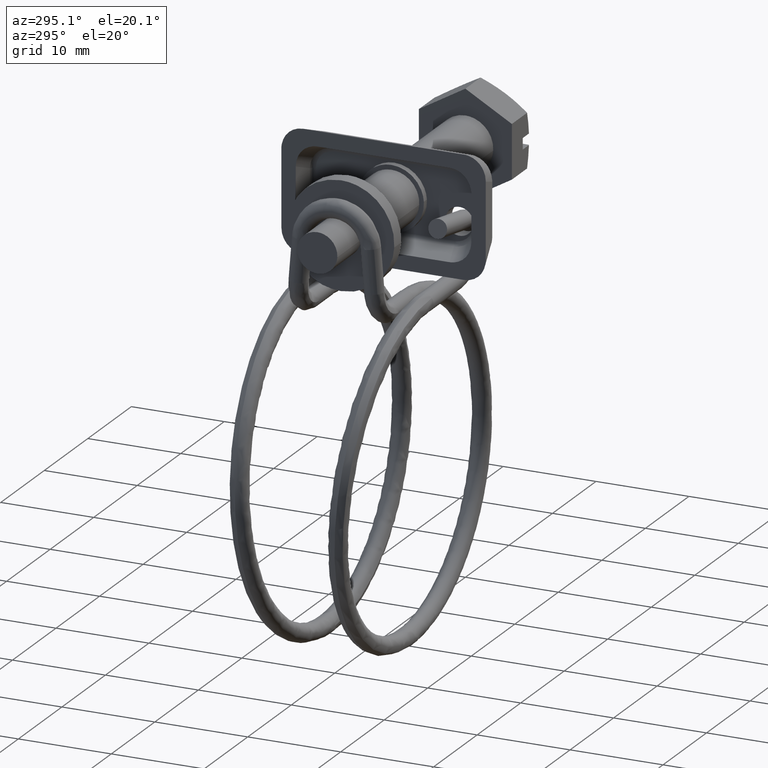
[diagram: clean part render]
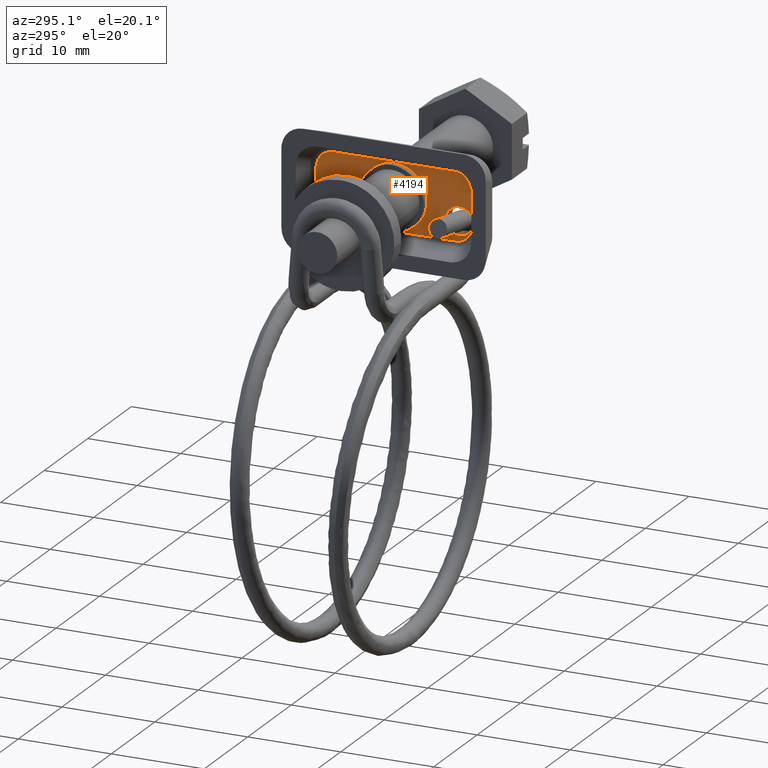
[diagram: same view with one face highlighted and labeled with its STEP entity id]
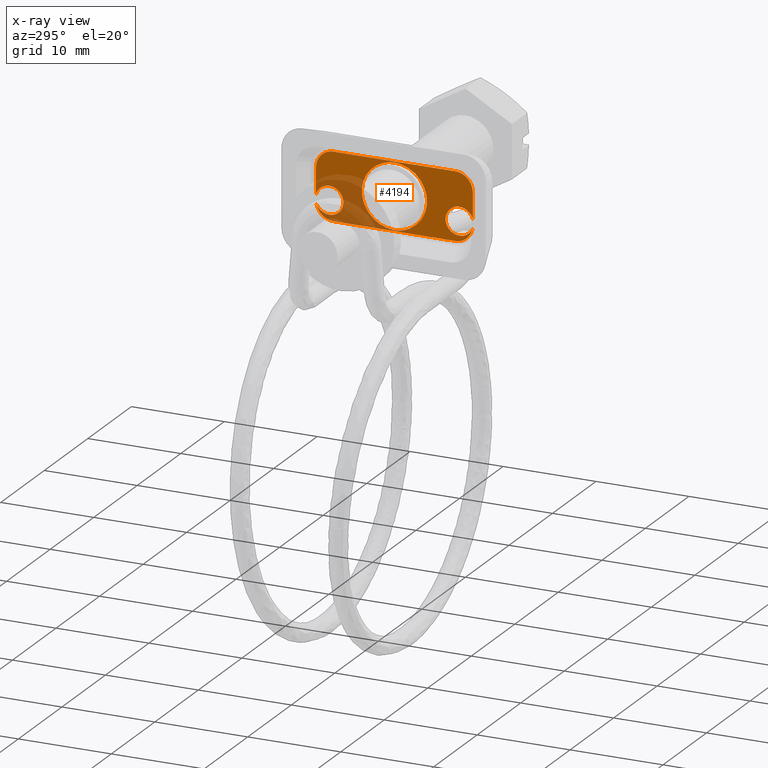
[diagram: x-ray of the same camera — body ghosted, the highlighted face saturated]
A machine part, auxiliary view. The second image highlights one B-rep face of the part: STEP entity #4194.
The next image is the same camera in x-ray: the body ghosted, the highlighted face saturated — about 28% of this face is hidden behind the body in this view.
In plain terms, the highlighted face is a freeform B-spline surface patch.
Its self-contained STEP definition (entity closure, byte-faithful):
#1883=CARTESIAN_POINT('',(-36.200000000000003,-5.728322967220962,-0.704489142564706));
#1884=VERTEX_POINT('',#1883);
#1885=CARTESIAN_POINT('',(-36.200000000000003,-8.438446995591788,-1.074711579191980));
#1886=VERTEX_POINT('',#1885);
#1887=CARTESIAN_POINT('',(-36.199999999999996,-5.728322967220962,-0.704489142564706));
#1888=CARTESIAN_POINT('',(-36.200000000000003,-6.104554299034929,-0.103058327120304));
#1889=CARTESIAN_POINT('',(-36.200000000000003,-6.808142015089159,-0.012320426427032));
#1890=CARTESIAN_POINT('',(-36.200000000000010,-8.075999828347010,0.151188335490741));
#1891=CARTESIAN_POINT('',(-36.200000000000003,-8.438446995591784,-1.074711579191981));
#1899=(BOUNDED_CURVE()B_SPLINE_CURVE(2,(#1887,#1888,#1889,#1890,#1891),.UNSPECIFIED.,.F.,.U.)B_SPLINE_CURVE_WITH_KNOTS((3,2,3),(0.594758362980781,0.750000000000000,1.0),.UNSPECIFIED.)CURVE()GEOMETRIC_REPRESENTATION_ITEM()RATIONAL_B_SPLINE_CURVE((0.887540634052560,0.851649814314742,1.0,0.761097942965372,1.0))REPRESENTATION_ITEM(''));
#1900=EDGE_CURVE('',#1884,#1886,#1899,.T.);
#1956=CARTESIAN_POINT('',(-36.200000000000003,-5.502797802371344,-1.591572809368125));
#1957=VERTEX_POINT('',#1956);
#1963=CARTESIAN_POINT('',(-36.200000000000003,-8.409378136258292,-2.013471780176190));
#1964=VERTEX_POINT('',#1963);
#1965=CARTESIAN_POINT('',(-36.200000000000003,-8.409378136258290,-2.013471780176189));
#1966=CARTESIAN_POINT('',(-36.200000000000010,-7.971777714804319,-3.214598093686211));
#1967=CARTESIAN_POINT('',(-36.200000000000003,-6.716465370576391,-2.972958965456003));
#1968=CARTESIAN_POINT('',(-36.200000000000010,-5.573834358310540,-2.753010230814557));
#1969=CARTESIAN_POINT('',(-36.200000000000010,-5.502797802371344,-1.591572809368125));
#1977=(BOUNDED_CURVE()B_SPLINE_CURVE(2,(#1965,#1966,#1967,#1968,#1969),.UNSPECIFIED.,.F.,.U.)B_SPLINE_CURVE_WITH_KNOTS((3,2,3),(0.0,0.250000000000000,0.482545984484111),.UNSPECIFIED.)CURVE()GEOMETRIC_REPRESENTATION_ITEM()RATIONAL_B_SPLINE_CURVE((1.0,0.761097942965372,1.0,0.777777143806413,0.968970550560096))REPRESENTATION_ITEM(''));
#1978=EDGE_CURVE('',#1964,#1957,#1977,.T.);
#2025=CARTESIAN_POINT('',(-36.200000000000003,-5.502797802371344,-1.591572809368125));
#2026=CARTESIAN_POINT('',(-36.200000000000003,-5.498580561943726,-1.522621537968316));
#2027=CARTESIAN_POINT('',(-36.200000000000003,-5.500718614089884,-1.453574512785301));
#2028=CARTESIAN_POINT('',(-36.200000000000003,-5.513269020131084,-1.048267185019144));
#2029=CARTESIAN_POINT('',(-36.199999999999996,-5.728322967220962,-0.704489142564706));
#2037=(BOUNDED_CURVE()B_SPLINE_CURVE(2,(#2025,#2026,#2027,#2028,#2029),.UNSPECIFIED.,.F.,.U.)B_SPLINE_CURVE_WITH_KNOTS((3,2,3),(0.482545984484111,0.500000000000000,0.594758362980781),.UNSPECIFIED.)CURVE()GEOMETRIC_REPRESENTATION_ITEM()RATIONAL_B_SPLINE_CURVE((0.968970550560096,0.983320799158959,1.0,0.909448128650630,0.887540634052560))REPRESENTATION_ITEM(''));
#2038=EDGE_CURVE('',#1957,#1884,#2037,.T.);
#2086=CARTESIAN_POINT('',(-36.199999999999982,5.910111553864709,-2.530603306309243));
#2087=VERTEX_POINT('',#2086);
#2088=CARTESIAN_POINT('',(-36.200000000000003,8.409378136258361,-2.013471780175256));
#2089=VERTEX_POINT('',#2088);
#2090=CARTESIAN_POINT('',(-36.199999999999982,5.910111553864710,-2.530603306309242));
#2091=CARTESIAN_POINT('',(-36.200000000000003,6.242050934374313,-2.881637398110195));
#2092=CARTESIAN_POINT('',(-36.200000000000003,6.716465370576574,-2.972958965456092));
#2093=CARTESIAN_POINT('',(-36.200000000000010,7.971777714805023,-3.214598093685992));
#2094=CARTESIAN_POINT('',(-36.200000000000003,8.409378136258351,-2.013471780175252));
#2102=(BOUNDED_CURVE()B_SPLINE_CURVE(2,(#2090,#2091,#2092,#2093,#2094),.UNSPECIFIED.,.F.,.U.)B_SPLINE_CURVE_WITH_KNOTS((3,2,3),(0.639026301856619,0.750000000000000,1.0),.UNSPECIFIED.)CURVE()GEOMETRIC_REPRESENTATION_ITEM()RATIONAL_B_SPLINE_CURVE((0.882053000549589,0.893952620947175,1.0,0.761097942965258,1.0))REPRESENTATION_ITEM(''));
#2103=EDGE_CURVE('',#2087,#2089,#2102,.T.);
#2159=CARTESIAN_POINT('',(-36.200000000000003,5.502797802376444,-1.408427190543685));
#2160=VERTEX_POINT('',#2159);
#2166=CARTESIAN_POINT('',(-36.200000000000003,8.438446995591820,-1.074711579193044));
#2167=VERTEX_POINT('',#2166);
#2168=CARTESIAN_POINT('',(-36.200000000000003,8.438446995591820,-1.074711579193044));
#2169=CARTESIAN_POINT('',(-36.200000000000010,8.075999828347822,0.151188335490383));
#2170=CARTESIAN_POINT('',(-36.200000000000003,6.808142015089454,-0.012320426426957));
#2171=CARTESIAN_POINT('',(-36.200000000000010,5.578488070982858,-0.170902242057313));
#2172=CARTESIAN_POINT('',(-36.200000000000003,5.502797802376444,-1.408427190543685));
#2180=(BOUNDED_CURVE()B_SPLINE_CURVE(2,(#2168,#2169,#2170,#2171,#2172),.UNSPECIFIED.,.F.,.U.)B_SPLINE_CURVE_WITH_KNOTS((3,2,3),(0.0,0.250000000000000,0.494224959474244),.UNSPECIFIED.)CURVE()GEOMETRIC_REPRESENTATION_ITEM()RATIONAL_B_SPLINE_CURVE((1.0,0.761097942965258,1.0,0.766616619209506,0.989217612143176))REPRESENTATION_ITEM(''));
#2181=EDGE_CURVE('',#2167,#2160,#2180,.T.);
#2232=CARTESIAN_POINT('',(-36.200000000000003,5.502797802376444,-1.408427190543685));
#2233=CARTESIAN_POINT('',(-36.200000000000003,5.501418096125874,-1.430985188263862));
#2234=CARTESIAN_POINT('',(-36.200000000000003,5.500718614089606,-1.453574512785245));
#2235=CARTESIAN_POINT('',(-36.200000000000003,5.481406792259794,-2.077237434481388));
#2236=CARTESIAN_POINT('',(-36.199999999999982,5.910111553864710,-2.530603306309242));
#2244=(BOUNDED_CURVE()B_SPLINE_CURVE(2,(#2232,#2233,#2234,#2235,#2236),.UNSPECIFIED.,.F.,.U.)B_SPLINE_CURVE_WITH_KNOTS((3,2,3),(0.494224959474244,0.500000000000000,0.639026301856619),.UNSPECIFIED.)CURVE()GEOMETRIC_REPRESENTATION_ITEM()RATIONAL_B_SPLINE_CURVE((0.989217612143176,0.994481323755752,1.0,0.867145322018083,0.882053000549589))REPRESENTATION_ITEM(''));
#2245=EDGE_CURVE('',#2160,#2087,#2244,.T.);
#2323=CARTESIAN_POINT('',(-36.200000000000003,-3.493471794471653,0.213669888451806));
#2324=VERTEX_POINT('',#2323);
#2330=CARTESIAN_POINT('',(-36.200000000000003,0.0,3.500000000000000));
#2331=VERTEX_POINT('',#2330);
#2332=CARTESIAN_POINT('',(-36.200000000000003,0.0,3.500000000000000));
#2333=CARTESIAN_POINT('',(-36.199999999999996,-3.292471234019215,3.499999999999999));
#2334=CARTESIAN_POINT('',(-36.200000000000003,-3.493471794471652,0.213669888451806));
#2342=(BOUNDED_CURVE()B_SPLINE_CURVE(2,(#2332,#2333,#2334),.UNSPECIFIED.,.F.,.U.)B_SPLINE_CURVE_WITH_KNOTS((3,3),(0.500000000000000,0.739332962234085),.UNSPECIFIED.)CURVE()GEOMETRIC_REPRESENTATION_ITEM()RATIONAL_B_SPLINE_CURVE((1.0,0.719603993292402,0.976072041656305))REPRESENTATION_ITEM(''));
#2343=EDGE_CURVE('',#2331,#2324,#2342,.T.);
#2345=CARTESIAN_POINT('',(-36.200000000000003,3.475533342264662,-0.413119821367392));
#2346=VERTEX_POINT('',#2345);
#2347=CARTESIAN_POINT('',(-36.200000000000003,3.475533342264662,-0.413119821367392));
#2348=CARTESIAN_POINT('',(-36.200000000000010,3.500000000000001,-0.207284418851149));
#2349=CARTESIAN_POINT('',(-36.200000000000003,3.500000000000000,0.0));
#2350=CARTESIAN_POINT('',(-36.200000000000003,3.500000000000000,3.500000000000000));
#2351=CARTESIAN_POINT('',(-36.200000000000003,0.0,3.500000000000000));
#2359=(BOUNDED_CURVE()B_SPLINE_CURVE(2,(#2347,#2348,#2349,#2350,#2351),.UNSPECIFIED.,.F.,.U.)B_SPLINE_CURVE_WITH_KNOTS((3,2,3),(0.229562473508959,0.250000000000000,0.500000000000000),.UNSPECIFIED.)CURVE()GEOMETRIC_REPRESENTATION_ITEM()RATIONAL_B_SPLINE_CURVE((0.956026754174783,0.976055948325816,1.0,0.707106781186547,1.0))REPRESENTATION_ITEM(''));
#2360=EDGE_CURVE('',#2346,#2331,#2359,.T.);
#2404=CARTESIAN_POINT('',(-36.200000000000003,0.0,-3.500000000000000));
#2405=VERTEX_POINT('',#2404);
#2406=CARTESIAN_POINT('',(-36.200000000000003,0.0,-3.500000000000000));
#2407=CARTESIAN_POINT('',(-36.200000000000003,3.108610840705958,-3.500000000000000));
#2408=CARTESIAN_POINT('',(-36.200000000000010,3.475533342264662,-0.413119821367392));
#2416=(BOUNDED_CURVE()B_SPLINE_CURVE(2,(#2406,#2407,#2408),.UNSPECIFIED.,.F.,.U.)B_SPLINE_CURVE_WITH_KNOTS((3,3),(0.0,0.229562473508959),.UNSPECIFIED.)CURVE()GEOMETRIC_REPRESENTATION_ITEM()RATIONAL_B_SPLINE_CURVE((1.0,0.731050832860732,0.956026754174783))REPRESENTATION_ITEM(''));
#2417=EDGE_CURVE('',#2405,#2346,#2416,.T.);
#2419=CARTESIAN_POINT('',(-36.200000000000003,-3.493471794471653,0.213669888451806));
#2420=CARTESIAN_POINT('',(-36.200000000000003,-3.500000000000000,0.106934671625091));
#2421=CARTESIAN_POINT('',(-36.200000000000003,-3.500000000000000,0.0));
#2422=CARTESIAN_POINT('',(-36.200000000000003,-3.500000000000000,-3.500000000000000));
#2423=CARTESIAN_POINT('',(-36.200000000000003,0.0,-3.500000000000000));
#2431=(BOUNDED_CURVE()B_SPLINE_CURVE(2,(#2419,#2420,#2421,#2422,#2423),.UNSPECIFIED.,.F.,.U.)B_SPLINE_CURVE_WITH_KNOTS((3,2,3),(0.739332962234085,0.750000000000000,1.0),.UNSPECIFIED.)CURVE()GEOMETRIC_REPRESENTATION_ITEM()RATIONAL_B_SPLINE_CURVE((0.976072041656306,0.987502787894146,1.0,0.707106781186547,1.0))REPRESENTATION_ITEM(''));
#2432=EDGE_CURVE('',#2324,#2405,#2431,.T.);
#2491=CARTESIAN_POINT('',(-36.200000000000003,-6.552455856614260,-3.613999483098555));
#2492=VERTEX_POINT('',#2491);
#2536=CARTESIAN_POINT('',(-36.200000000000003,-6.552455856614260,-3.613999483098555));
#2537=CARTESIAN_POINT('',(-36.199999999999996,-8.142356781997027,-3.613999483098620));
#2538=CARTESIAN_POINT('',(-36.200000000000003,-8.409378136258329,-2.013471780176166));
#2546=(BOUNDED_CURVE()B_SPLINE_CURVE(2,(#2536,#2537,#2538),.UNSPECIFIED.,.F.,.U.)CURVE()GEOMETRIC_REPRESENTATION_ITEM()QUASI_UNIFORM_CURVE()RATIONAL_B_SPLINE_CURVE((1.0,0.790787445489052,1.0))REPRESENTATION_ITEM(''));
#2547=EDGE_CURVE('',#2492,#1964,#2546,.T.);
#2641=CARTESIAN_POINT('',(-36.200000000000003,6.552455856614290,-3.613999483098555));
#2642=VERTEX_POINT('',#2641);
#2664=CARTESIAN_POINT('',(-36.200000000000003,6.552455856614290,-3.613999483098555));
#2665=CARTESIAN_POINT('',(-36.200000000000003,-6.552455856614260,-3.613999483098555));
#2666=QUASI_UNIFORM_CURVE('',1,(#2664,#2665),.UNSPECIFIED.,.F.,.U.);
#2667=EDGE_CURVE('',#2642,#2492,#2666,.T.);
#2788=CARTESIAN_POINT('',(-36.200000000000003,8.409378136258361,-2.013471780175256));
#2789=CARTESIAN_POINT('',(-36.199999999999996,8.142356781997565,-3.613999483098475));
#2790=CARTESIAN_POINT('',(-36.200000000000003,6.552455856614280,-3.613999483098562));
#2798=(BOUNDED_CURVE()B_SPLINE_CURVE(2,(#2788,#2789,#2790),.UNSPECIFIED.,.F.,.U.)CURVE()GEOMETRIC_REPRESENTATION_ITEM()QUASI_UNIFORM_CURVE()RATIONAL_B_SPLINE_CURVE((1.0,0.790787445488940,1.0))REPRESENTATION_ITEM(''));
#2799=EDGE_CURVE('',#2089,#2642,#2798,.T.);
#2820=CARTESIAN_POINT('',(-36.200000000000003,-8.438446995591788,1.659899352054025));
#2821=VERTEX_POINT('',#2820);
#2835=CARTESIAN_POINT('',(-36.200000000000003,-8.438446995591788,-1.074711579191980));
#2836=CARTESIAN_POINT('',(-36.200000000000003,-8.438446995591788,1.659899352054025));
#2837=QUASI_UNIFORM_CURVE('',1,(#2835,#2836),.UNSPECIFIED.,.F.,.U.);
#2838=EDGE_CURVE('',#1886,#2821,#2837,.T.);
#2964=CARTESIAN_POINT('',(-36.200000000000003,-6.552455856614260,3.613998483098680));
#2965=VERTEX_POINT('',#2964);
#2979=CARTESIAN_POINT('',(-36.200000000000003,-8.438446995591779,1.659899352054033));
#2980=CARTESIAN_POINT('',(-36.199999999999996,-8.438446995591772,3.613998483098672));
#2981=CARTESIAN_POINT('',(-36.200000000000003,-6.552455856614251,3.613998483098665));
#2989=(BOUNDED_CURVE()B_SPLINE_CURVE(2,(#2979,#2980,#2981),.UNSPECIFIED.,.F.,.U.)CURVE()GEOMETRIC_REPRESENTATION_ITEM()QUASI_UNIFORM_CURVE()RATIONAL_B_SPLINE_CURVE((1.0,0.736600277350791,1.0))REPRESENTATION_ITEM(''));
#2990=EDGE_CURVE('',#2821,#2965,#2989,.T.);
#3074=CARTESIAN_POINT('',(-36.200000000000003,6.552455856614140,3.613998483098650));
#3075=VERTEX_POINT('',#3074);
#3089=CARTESIAN_POINT('',(-36.200000000000003,-6.552455856614260,3.613998483098680));
#3090=CARTESIAN_POINT('',(-36.200000000000003,6.552455856614140,3.613998483098650));
#3091=QUASI_UNIFORM_CURVE('',1,(#3089,#3090),.UNSPECIFIED.,.F.,.U.);
#3092=EDGE_CURVE('',#2965,#3075,#3091,.T.);
#3117=CARTESIAN_POINT('',(-36.200000000000003,8.438446995591759,1.659899352054280));
#3118=VERTEX_POINT('',#3117);
#3140=CARTESIAN_POINT('',(-36.200000000000003,8.438446995591759,1.659899352054280));
#3141=CARTESIAN_POINT('',(-36.200000000000003,8.438446995591820,-1.074711579193044));
#3142=QUASI_UNIFORM_CURVE('',1,(#3140,#3141),.UNSPECIFIED.,.F.,.U.);
#3143=EDGE_CURVE('',#3118,#2167,#3142,.T.);
#3201=CARTESIAN_POINT('',(-36.200000000000003,6.552455856614149,3.613998483098665));
#3202=CARTESIAN_POINT('',(-36.200000000000010,8.438446995591537,3.613998483098739));
#3203=CARTESIAN_POINT('',(-36.200000000000003,8.438446995591747,1.659899352054262));
#3211=(BOUNDED_CURVE()B_SPLINE_CURVE(2,(#3201,#3202,#3203),.UNSPECIFIED.,.F.,.U.)CURVE()GEOMETRIC_REPRESENTATION_ITEM()QUASI_UNIFORM_CURVE()RATIONAL_B_SPLINE_CURVE((1.0,0.736600277350815,1.0))REPRESENTATION_ITEM(''));
#3212=EDGE_CURVE('',#3075,#3118,#3211,.T.);
#4167=CARTESIAN_POINT('',(-36.200000000000003,-9.281447817740716,3.975036873826210));
#4168=CARTESIAN_POINT('',(-36.200000000000003,-9.281447817740716,-3.975037615332734));
#4169=CARTESIAN_POINT('',(-36.200000000000003,9.281448270414316,3.975036873826210));
#4170=CARTESIAN_POINT('',(-36.200000000000003,9.281448270414316,-3.975037615332734));
#4171=B_SPLINE_SURFACE_WITH_KNOTS('',1,1,((#4167,#4169),(#4168,#4170)),.UNSPECIFIED.,.F.,.F.,.U.,(2,2),(2,2),(0.0,7.950074489158943),(0.0,18.562896088155028),.UNSPECIFIED.);
#4172=ORIENTED_EDGE('',*,*,#2667,.T.);
#4173=ORIENTED_EDGE('',*,*,#2547,.T.);
#4174=ORIENTED_EDGE('',*,*,#1978,.T.);
#4175=ORIENTED_EDGE('',*,*,#2038,.T.);
#4176=ORIENTED_EDGE('',*,*,#1900,.T.);
#4177=ORIENTED_EDGE('',*,*,#2838,.T.);
#4178=ORIENTED_EDGE('',*,*,#2990,.T.);
#4179=ORIENTED_EDGE('',*,*,#3092,.T.);
#4180=ORIENTED_EDGE('',*,*,#3212,.T.);
#4181=ORIENTED_EDGE('',*,*,#3143,.T.);
#4182=ORIENTED_EDGE('',*,*,#2181,.T.);
#4183=ORIENTED_EDGE('',*,*,#2245,.T.);
#4184=ORIENTED_EDGE('',*,*,#2103,.T.);
#4185=ORIENTED_EDGE('',*,*,#2799,.T.);
#4186=EDGE_LOOP('',(#4172,#4173,#4174,#4175,#4176,#4177,#4178,#4179,#4180,#4181,#4182,#4183,#4184,#4185));
#4187=FACE_OUTER_BOUND('',#4186,.T.);
#4188=ORIENTED_EDGE('',*,*,#2343,.T.);
#4189=ORIENTED_EDGE('',*,*,#2432,.T.);
#4190=ORIENTED_EDGE('',*,*,#2417,.T.);
#4191=ORIENTED_EDGE('',*,*,#2360,.T.);
#4192=EDGE_LOOP('',(#4188,#4189,#4190,#4191));
#4193=FACE_BOUND('',#4192,.T.);
#4194=ADVANCED_FACE('',(#4187,#4193),#4171,.F.);